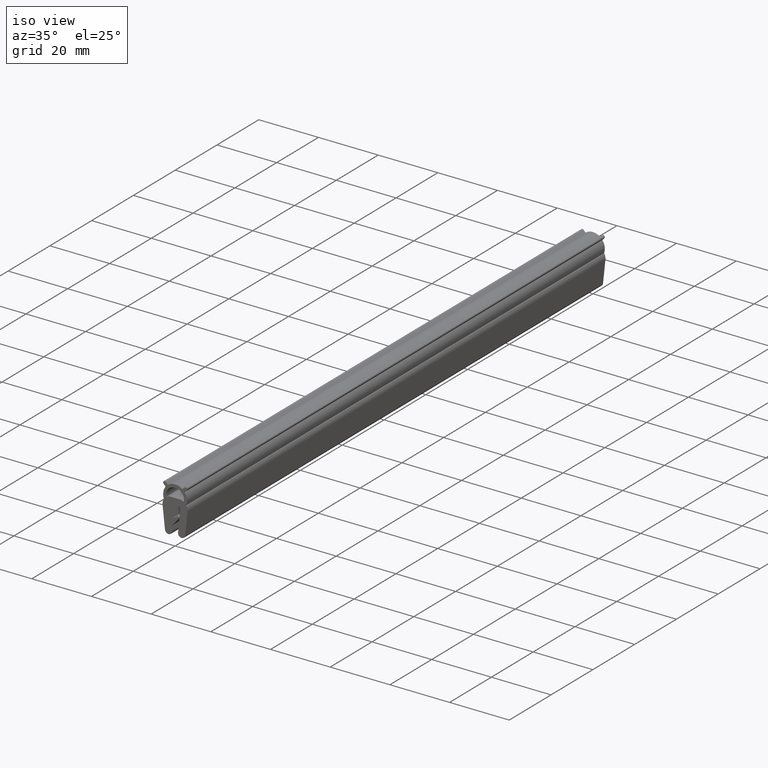
[diagram: clean part render]
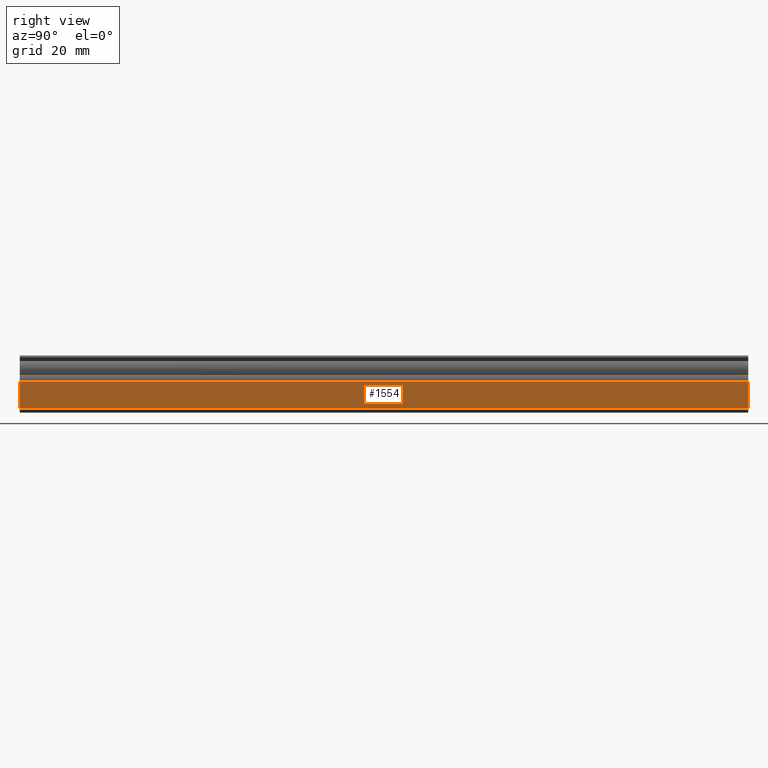
[diagram: tour spotlight — one face highlighted and labeled with its STEP entity id]
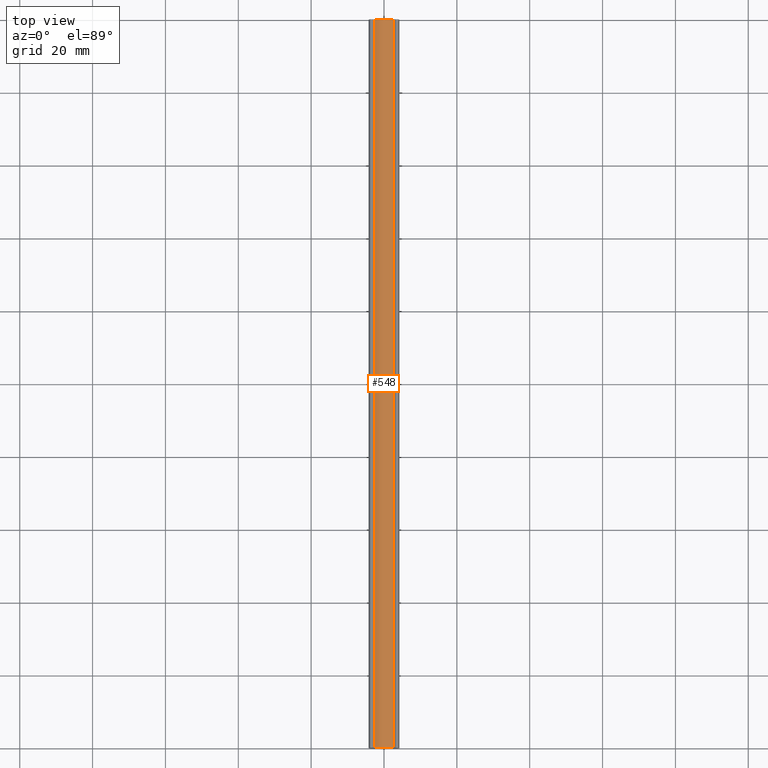
[diagram: tour spotlight — one face highlighted and labeled with its STEP entity id]
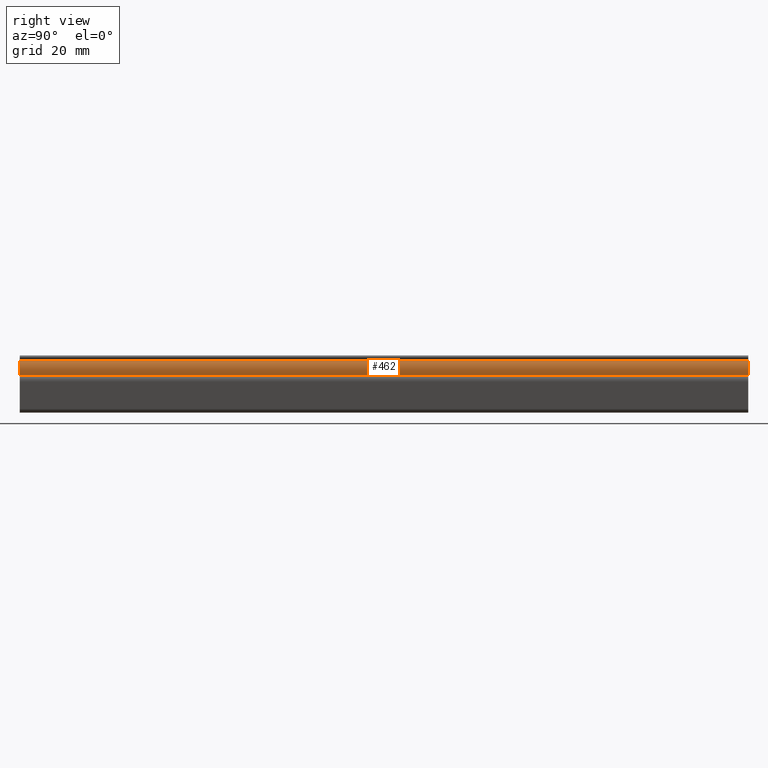
[diagram: tour spotlight — one face highlighted and labeled with its STEP entity id]
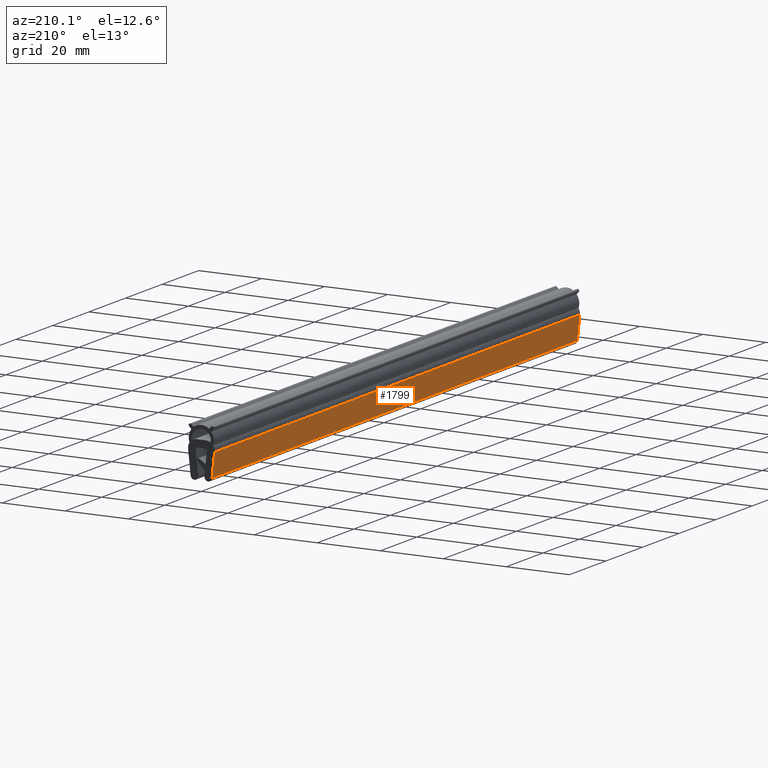
[diagram: tour spotlight — one face highlighted and labeled with its STEP entity id]
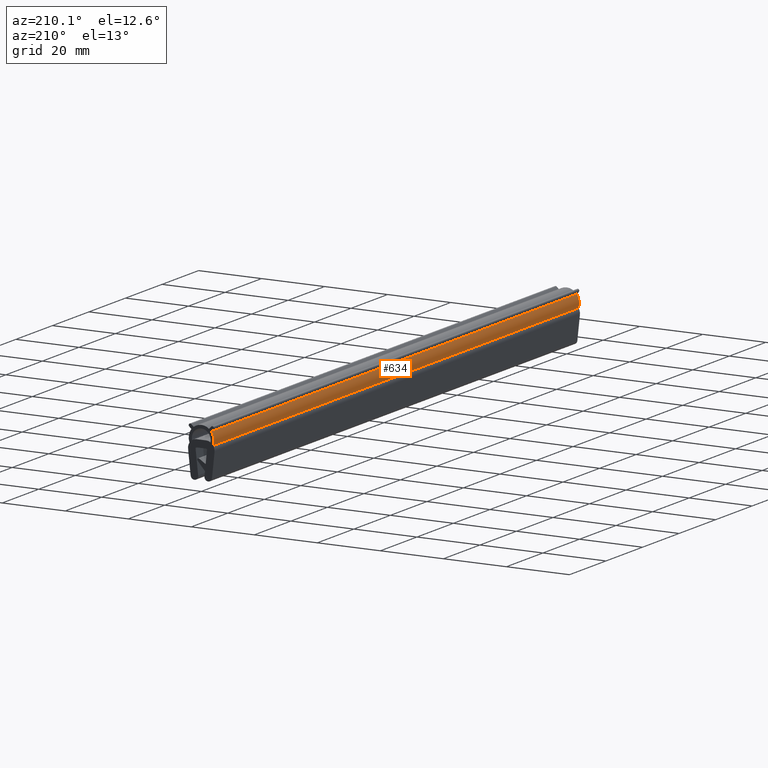
[diagram: tour spotlight — one face highlighted and labeled with its STEP entity id]
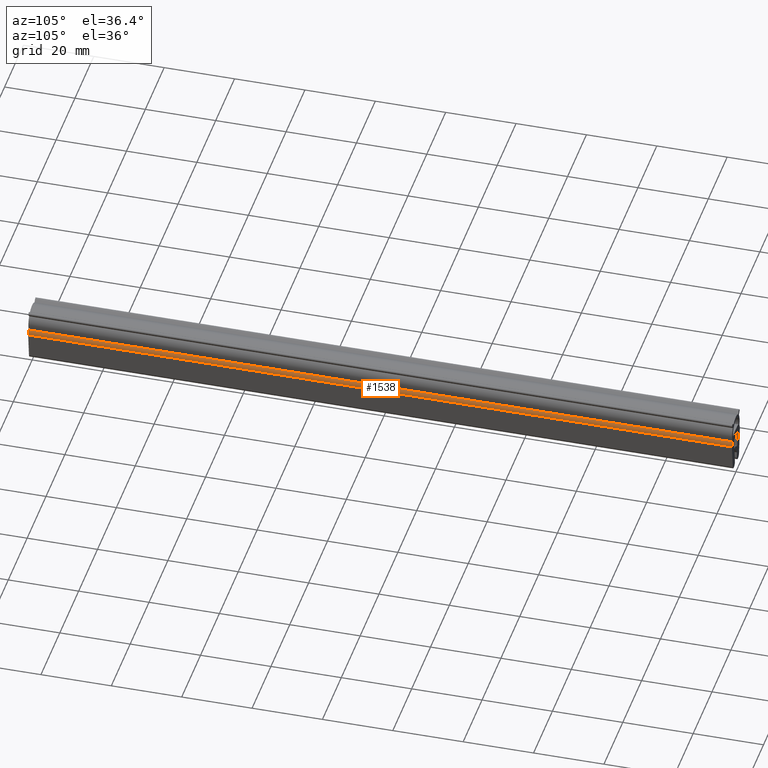
[diagram: tour spotlight — one face highlighted and labeled with its STEP entity id]
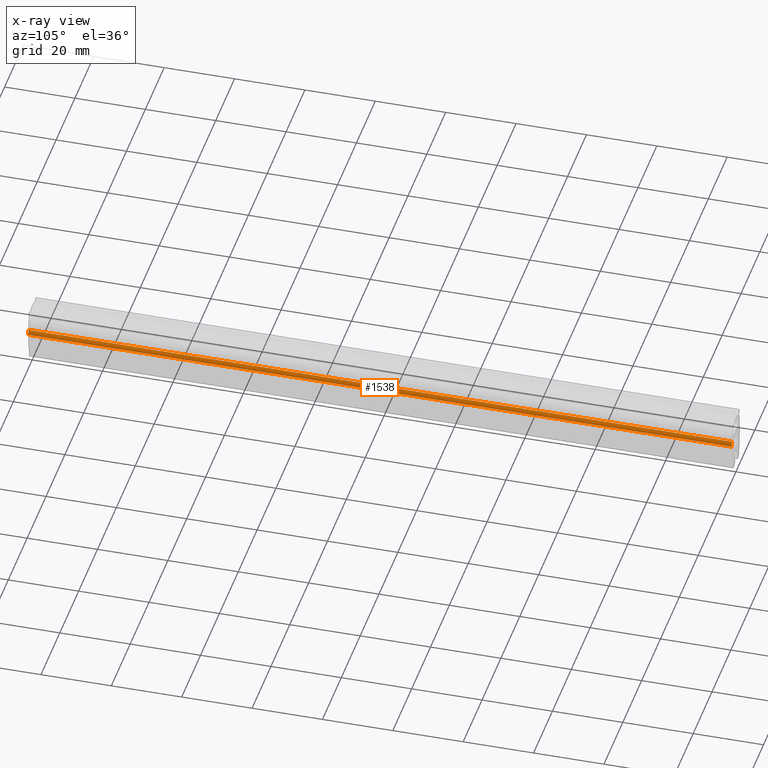
[diagram: x-ray of the same camera — body ghosted, this tour face saturated]
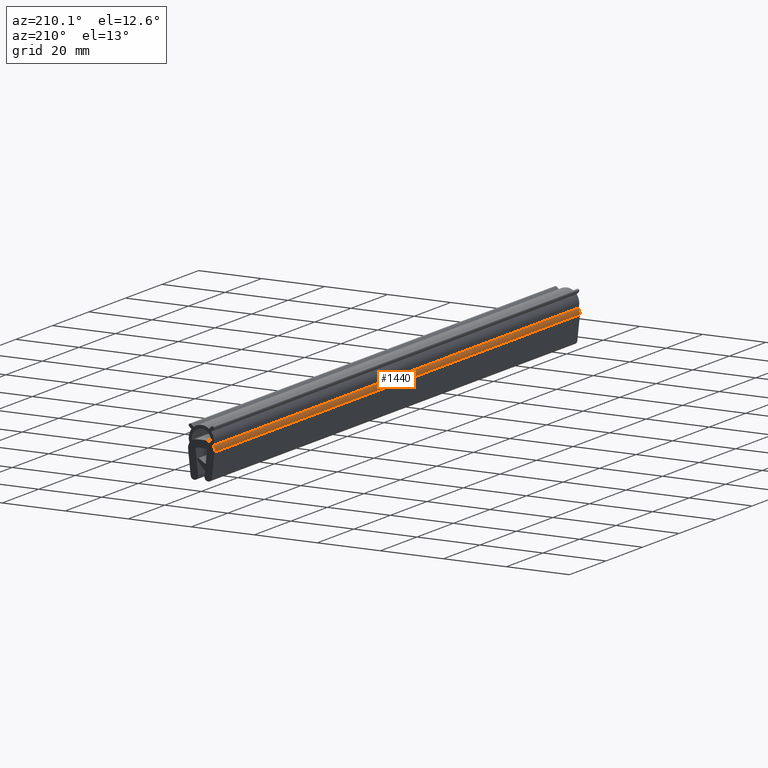
[diagram: tour spotlight — one face highlighted and labeled with its STEP entity id]
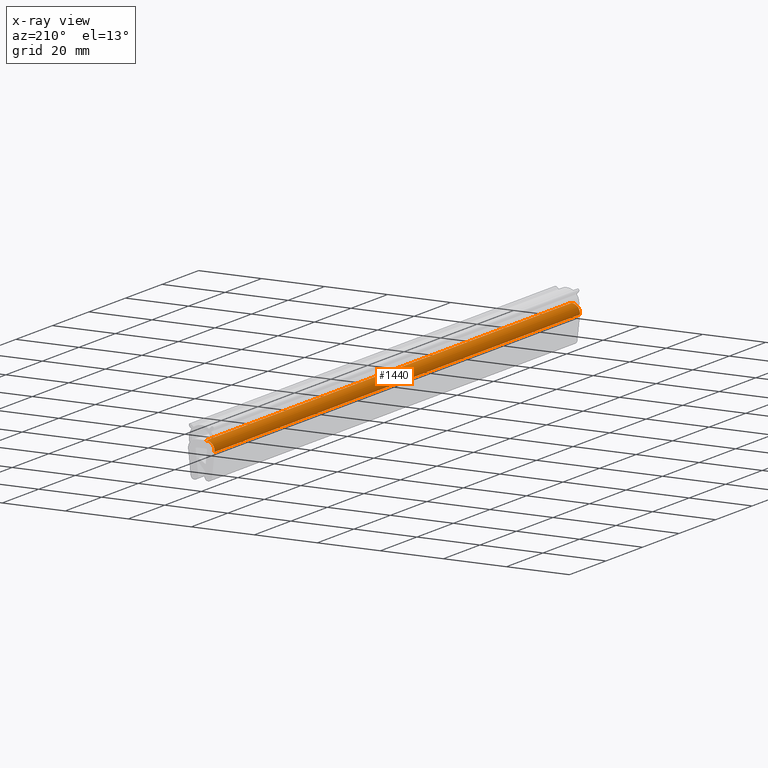
[diagram: x-ray of the same camera — body ghosted, this tour face saturated]
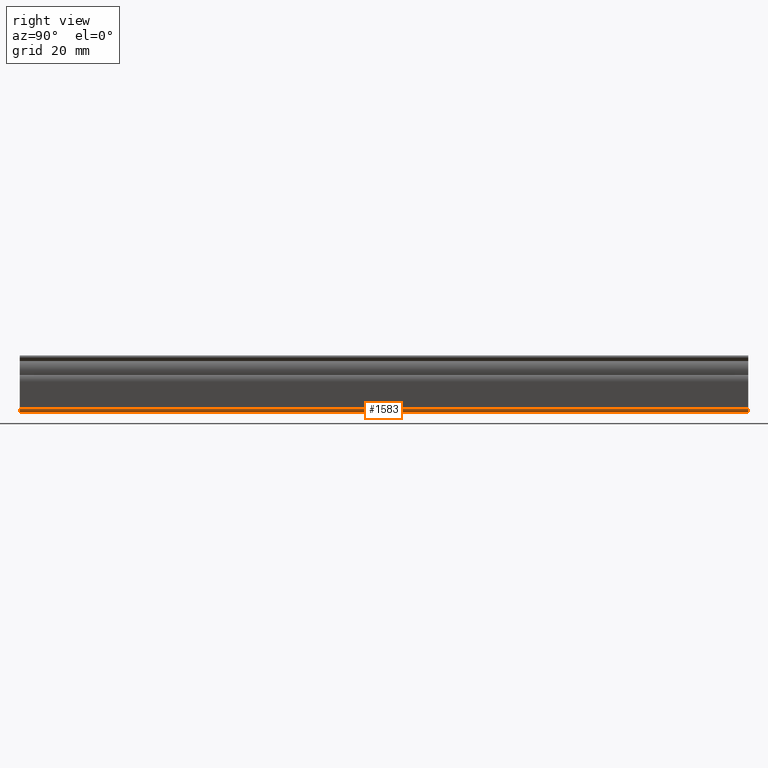
[diagram: tour spotlight — one face highlighted and labeled with its STEP entity id]
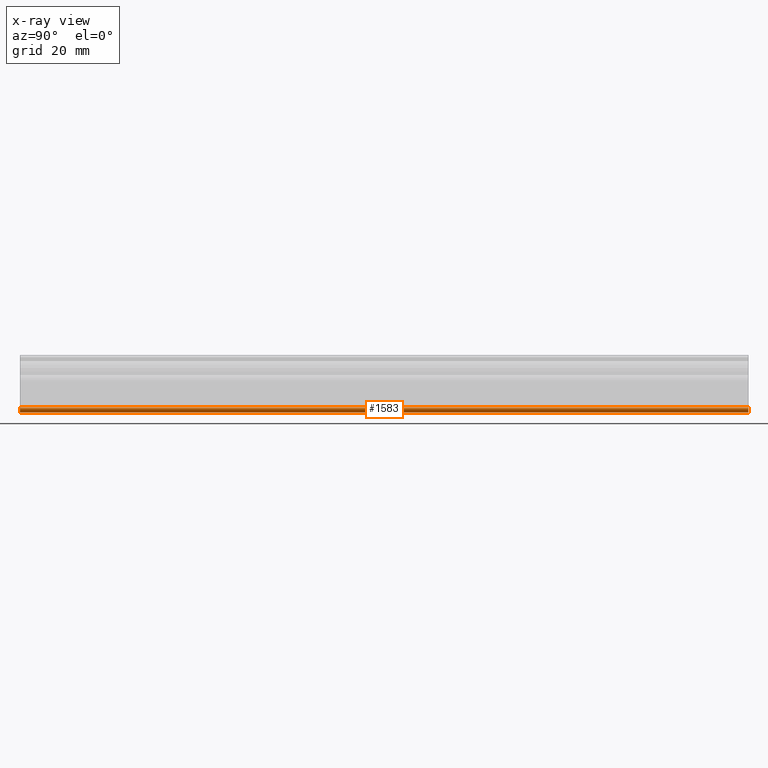
[diagram: x-ray of the same camera — body ghosted, this tour face saturated]
A machine part: a face-by-face anatomy tour. The part has 61 B-rep faces; the first image is the clean iso view, then the 8 largest visible faces are spotlighted one at a time (largest first), each with its STEP entity span.

Face 1 — right view, entity #1554. In plain terms, the highlighted face is a freeform B-spline surface patch.
Definition (entity closure, byte-faithful):
#838=CARTESIAN_POINT('',(3.385742273282435,0.0,-14.630608957689040));
#839=VERTEX_POINT('',#838);
#855=CARTESIAN_POINT('',(4.200000208288410,0.0,-7.193870154800210));
#856=VERTEX_POINT('',#855);
#857=CARTESIAN_POINT('',(3.385742273282435,0.0,-14.630608957689040));
#858=CARTESIAN_POINT('',(4.200000208288410,0.0,-7.193870154800210));
#859=QUASI_UNIFORM_CURVE('',1,(#857,#858),.UNSPECIFIED.,.F.,.U.);
#860=EDGE_CURVE('',#839,#856,#859,.T.);
#1107=CARTESIAN_POINT('',(4.200000208288410,200.0,-7.193870154800210));
#1108=VERTEX_POINT('',#1107);
#1122=CARTESIAN_POINT('',(3.385742273282435,200.0,-14.630608957689040));
#1123=VERTEX_POINT('',#1122);
#1124=CARTESIAN_POINT('',(3.385742273282435,200.0,-14.630608957689040));
#1125=CARTESIAN_POINT('',(4.200000208288410,200.0,-7.193870154800210));
#1126=QUASI_UNIFORM_CURVE('',1,(#1124,#1125),.UNSPECIFIED.,.F.,.U.);
#1127=EDGE_CURVE('',#1123,#1108,#1126,.T.);
#1529=CARTESIAN_POINT('',(4.200000208288410,200.0,-7.193870154800210));
#1530=CARTESIAN_POINT('',(4.200000208288410,0.0,-7.193870154800210));
#1531=QUASI_UNIFORM_CURVE('',1,(#1529,#1530),.UNSPECIFIED.,.F.,.U.);
#1532=EDGE_CURVE('',#1108,#856,#1531,.T.);
#1539=CARTESIAN_POINT('',(4.240672402942014,-9.989999612361194,-6.822404952957445));
#1540=CARTESIAN_POINT('',(3.345070129588935,-9.989999612361194,-15.002073694104411));
#1541=CARTESIAN_POINT('',(4.240672402942014,209.990004976779200,-6.822404952957445));
#1542=CARTESIAN_POINT('',(3.345070129588935,209.990004976779200,-15.002073694104411));
#1543=B_SPLINE_SURFACE_WITH_KNOTS('',1,1,((#1539,#1541),(#1540,#1542)),.UNSPECIFIED.,.F.,.F.,.U.,(2,2),(2,2),(0.0,8.228552980137636),(0.0,219.980004589140410),.UNSPECIFIED.);
#1544=ORIENTED_EDGE('',*,*,#860,.F.);
#1545=CARTESIAN_POINT('',(3.385742273282435,200.0,-14.630608957689040));
#1546=CARTESIAN_POINT('',(3.385742273282435,0.0,-14.630608957689040));
#1547=QUASI_UNIFORM_CURVE('',1,(#1545,#1546),.UNSPECIFIED.,.F.,.U.);
#1548=EDGE_CURVE('',#1123,#839,#1547,.T.);
#1549=ORIENTED_EDGE('',*,*,#1548,.F.);
#1550=ORIENTED_EDGE('',*,*,#1127,.T.);
#1551=ORIENTED_EDGE('',*,*,#1532,.T.);
#1552=EDGE_LOOP('',(#1544,#1549,#1550,#1551));
#1553=FACE_OUTER_BOUND('',#1552,.T.);
#1554=ADVANCED_FACE('',(#1553),#1543,.T.);

Face 2 — top view, entity #548. In plain terms, the highlighted face is a freeform B-spline surface patch.
Definition (entity closure, byte-faithful):
#141=CARTESIAN_POINT('',(2.452689649487175,0.0,-0.840203569326272));
#142=VERTEX_POINT('',#141);
#148=CARTESIAN_POINT('',(-2.452689649487200,0.0,-0.840203569326334));
#149=VERTEX_POINT('',#148);
#150=CARTESIAN_POINT('',(2.452689649487175,0.0,-0.840203569326273));
#151=CARTESIAN_POINT('',(-3.581163E-014,0.0,1.063617340876788));
#152=CARTESIAN_POINT('',(-2.452689649487200,0.0,-0.840203569326334));
#160=(BOUNDED_CURVE()B_SPLINE_CURVE(2,(#150,#151,#152),.UNSPECIFIED.,.F.,.U.)CURVE()GEOMETRIC_REPRESENTATION_ITEM()QUASI_UNIFORM_CURVE()RATIONAL_B_SPLINE_CURVE((1.0,0.789949107668429,1.0))REPRESENTATION_ITEM(''));
#161=EDGE_CURVE('',#142,#149,#160,.T.);
#275=CARTESIAN_POINT('',(-2.452689649487200,200.0,-0.840203569326334));
#276=VERTEX_POINT('',#275);
#282=CARTESIAN_POINT('',(2.452689649487175,200.0,-0.840203569326272));
#283=VERTEX_POINT('',#282);
#284=CARTESIAN_POINT('',(2.452689649487175,200.0,-0.840203569326273));
#285=CARTESIAN_POINT('',(-3.581163E-014,199.999999999999970,1.063617340876788));
#286=CARTESIAN_POINT('',(-2.452689649487228,200.0,-0.840203569326298));
#294=(BOUNDED_CURVE()B_SPLINE_CURVE(2,(#284,#285,#286),.UNSPECIFIED.,.F.,.U.)CURVE()GEOMETRIC_REPRESENTATION_ITEM()QUASI_UNIFORM_CURVE()RATIONAL_B_SPLINE_CURVE((1.0,0.789949107668429,1.0))REPRESENTATION_ITEM(''));
#295=EDGE_CURVE('',#283,#276,#294,.T.);
#516=CARTESIAN_POINT('',(2.452689649487175,200.0,-0.840203569326272));
#517=CARTESIAN_POINT('',(2.452689649487175,0.0,-0.840203569326272));
#518=QUASI_UNIFORM_CURVE('',1,(#516,#517),.UNSPECIFIED.,.F.,.U.);
#519=EDGE_CURVE('',#283,#142,#518,.T.);
#524=CARTESIAN_POINT('',(-2.534563001830791,205.0,-0.905490282815300));
#525=CARTESIAN_POINT('',(-2.534563001830791,-5.125000000000000,-0.905490282815300));
#526=CARTESIAN_POINT('',(0.062038960533400,205.0,1.221260597216488));
#527=CARTESIAN_POINT('',(0.062038960533400,-5.124999999999999,1.221260597216488));
#528=CARTESIAN_POINT('',(2.607374914805158,205.0,-0.966586732137421));
#529=CARTESIAN_POINT('',(2.607374914805158,-5.125000000000000,-0.966586732137421));
#537=(BOUNDED_SURFACE()B_SPLINE_SURFACE(1,2,((#524,#526,#528),(#525,#527,#529)),.UNSPECIFIED.,.F.,.F.,.U.)B_SPLINE_SURFACE_WITH_KNOTS((2,2),(3,3),(0.0,210.125000000000110),(0.0,5.823523748259238),.UNSPECIFIED.)GEOMETRIC_REPRESENTATION_ITEM()RATIONAL_B_SPLINE_SURFACE(((1.0,0.766044443118978,1.0),(1.0,0.766044443118978,1.0)))REPRESENTATION_ITEM('')SURFACE());
#538=ORIENTED_EDGE('',*,*,#161,.F.);
#539=ORIENTED_EDGE('',*,*,#519,.F.);
#540=ORIENTED_EDGE('',*,*,#295,.T.);
#541=CARTESIAN_POINT('',(-2.452689649487200,200.0,-0.840203569326334));
#542=CARTESIAN_POINT('',(-2.452689649487200,0.0,-0.840203569326334));
#543=QUASI_UNIFORM_CURVE('',1,(#541,#542),.UNSPECIFIED.,.F.,.U.);
#544=EDGE_CURVE('',#276,#149,#543,.T.);
#545=ORIENTED_EDGE('',*,*,#544,.T.);
#546=EDGE_LOOP('',(#538,#539,#540,#545));
#547=FACE_OUTER_BOUND('',#546,.T.);
#548=ADVANCED_FACE('',(#547),#537,.T.);

Face 3 — right view, entity #462. In plain terms, the highlighted face is a freeform B-spline surface patch.
Definition (entity closure, byte-faithful):
#85=CARTESIAN_POINT('',(3.751994196858260,0.0,-5.386556723232770));
#86=VERTEX_POINT('',#85);
#100=CARTESIAN_POINT('',(3.159796430673720,0.0,-1.547310350512815));
#101=VERTEX_POINT('',#100);
#102=CARTESIAN_POINT('',(3.751994196858243,0.0,-5.386556723232766));
#103=CARTESIAN_POINT('',(4.522175638558348,0.0,-3.302461459499652));
#104=CARTESIAN_POINT('',(3.159796430673720,0.0,-1.547310350512819));
#112=(BOUNDED_CURVE()B_SPLINE_CURVE(2,(#102,#103,#104),.UNSPECIFIED.,.F.,.U.)CURVE()GEOMETRIC_REPRESENTATION_ITEM()QUASI_UNIFORM_CURVE()RATIONAL_B_SPLINE_CURVE((1.0,0.874191493389059,1.0))REPRESENTATION_ITEM(''));
#113=EDGE_CURVE('',#86,#101,#112,.T.);
#323=CARTESIAN_POINT('',(3.159796430673720,200.0,-1.547310350512815));
#324=VERTEX_POINT('',#323);
#330=CARTESIAN_POINT('',(3.751994196858260,200.0,-5.386556723232770));
#331=VERTEX_POINT('',#330);
#332=CARTESIAN_POINT('',(3.751994196858243,200.0,-5.386556723232766));
#333=CARTESIAN_POINT('',(4.522175638558348,200.0,-3.302461459499652));
#334=CARTESIAN_POINT('',(3.159796430673720,200.0,-1.547310350512819));
#342=(BOUNDED_CURVE()B_SPLINE_CURVE(2,(#332,#333,#334),.UNSPECIFIED.,.F.,.U.)CURVE()GEOMETRIC_REPRESENTATION_ITEM()QUASI_UNIFORM_CURVE()RATIONAL_B_SPLINE_CURVE((1.0,0.874191493389059,1.0))REPRESENTATION_ITEM(''));
#343=EDGE_CURVE('',#331,#324,#342,.T.);
#430=CARTESIAN_POINT('',(3.751994196858260,200.0,-5.386556723232770));
#431=CARTESIAN_POINT('',(3.751994196858260,0.0,-5.386556723232770));
#432=QUASI_UNIFORM_CURVE('',1,(#430,#431),.UNSPECIFIED.,.F.,.U.);
#433=EDGE_CURVE('',#331,#86,#432,.T.);
#438=CARTESIAN_POINT('',(3.094509717184717,205.0,-1.465436998169253));
#439=CARTESIAN_POINT('',(3.094509717184717,-5.125000000000000,-1.465436998169253));
#440=CARTESIAN_POINT('',(4.628740895665282,204.999999999999970,-3.338617221658105));
#441=CARTESIAN_POINT('',(4.628740895665282,-5.125000000000000,-3.338617221658105));
#442=CARTESIAN_POINT('',(3.680495912441321,204.999999999999970,-5.566508805753299));
#443=CARTESIAN_POINT('',(3.680495912441321,-5.125000000000000,-5.566508805753299));
#451=(BOUNDED_SURFACE()B_SPLINE_SURFACE(1,2,((#438,#440,#442),(#439,#441,#443)),.UNSPECIFIED.,.F.,.F.,.U.)B_SPLINE_SURFACE_WITH_KNOTS((2,2),(3,3),(0.0,210.125000000000000),(0.0,4.465398468239037),.UNSPECIFIED.)GEOMETRIC_REPRESENTATION_ITEM()RATIONAL_B_SPLINE_SURFACE(((1.0,0.854175971962481,0.996960397644796),(1.0,0.854175971962481,0.996960397644796)))REPRESENTATION_ITEM('')SURFACE());
#452=ORIENTED_EDGE('',*,*,#113,.F.);
#453=ORIENTED_EDGE('',*,*,#433,.F.);
#454=ORIENTED_EDGE('',*,*,#343,.T.);
#455=CARTESIAN_POINT('',(3.159796430673720,200.0,-1.547310350512815));
#456=CARTESIAN_POINT('',(3.159796430673720,0.0,-1.547310350512815));
#457=QUASI_UNIFORM_CURVE('',1,(#455,#456),.UNSPECIFIED.,.F.,.U.);
#458=EDGE_CURVE('',#324,#101,#457,.T.);
#459=ORIENTED_EDGE('',*,*,#458,.T.);
#460=EDGE_LOOP('',(#452,#453,#454,#459));
#461=FACE_OUTER_BOUND('',#460,.T.);
#462=ADVANCED_FACE('',(#461),#451,.T.);

Face 4 — auxiliary view, entity #1799. In plain terms, the highlighted face is a freeform B-spline surface patch.
Definition (entity closure, byte-faithful):
#704=CARTESIAN_POINT('',(-4.199999791712240,0.0,-7.193870154800090));
#705=VERTEX_POINT('',#704);
#721=CARTESIAN_POINT('',(-3.385741856706540,0.0,-14.630608957688979));
#722=VERTEX_POINT('',#721);
#723=CARTESIAN_POINT('',(-4.199999791712240,0.0,-7.193870154800090));
#724=CARTESIAN_POINT('',(-3.385741856706540,0.0,-14.630608957688979));
#725=QUASI_UNIFORM_CURVE('',1,(#723,#724),.UNSPECIFIED.,.F.,.U.);
#726=EDGE_CURVE('',#705,#722,#725,.T.);
#1045=CARTESIAN_POINT('',(-4.199999791712240,200.0,-7.193870154800090));
#1046=VERTEX_POINT('',#1045);
#1047=CARTESIAN_POINT('',(-3.385741856706540,200.0,-14.630608957688979));
#1048=VERTEX_POINT('',#1047);
#1049=CARTESIAN_POINT('',(-4.199999791712240,200.0,-7.193870154800090));
#1050=CARTESIAN_POINT('',(-3.385741856706540,200.0,-14.630608957688979));
#1051=QUASI_UNIFORM_CURVE('',1,(#1049,#1050),.UNSPECIFIED.,.F.,.U.);
#1052=EDGE_CURVE('',#1046,#1048,#1051,.T.);
#1433=CARTESIAN_POINT('',(-4.199999791712240,200.0,-7.193870154800090));
#1434=CARTESIAN_POINT('',(-4.199999791712240,0.0,-7.193870154800090));
#1435=QUASI_UNIFORM_CURVE('',1,(#1433,#1434),.UNSPECIFIED.,.F.,.U.);
#1436=EDGE_CURVE('',#1046,#705,#1435,.T.);
#1778=CARTESIAN_POINT('',(-3.385741856706540,200.0,-14.630608957688979));
#1779=CARTESIAN_POINT('',(-3.385741856706540,0.0,-14.630608957688979));
#1780=QUASI_UNIFORM_CURVE('',1,(#1778,#1779),.UNSPECIFIED.,.F.,.U.);
#1781=EDGE_CURVE('',#1048,#722,#1780,.T.);
#1788=CARTESIAN_POINT('',(-3.345069720293220,-9.989999612361194,-15.002073627614740));
#1789=CARTESIAN_POINT('',(-4.240671993645858,-9.989999612361194,-6.822404886467694));
#1790=CARTESIAN_POINT('',(-3.345069720293220,209.990004976779200,-15.002073627614740));
#1791=CARTESIAN_POINT('',(-4.240671993645858,209.990004976779200,-6.822404886467694));
#1792=B_SPLINE_SURFACE_WITH_KNOTS('',1,1,((#1788,#1790),(#1789,#1791)),.UNSPECIFIED.,.F.,.F.,.U.,(2,2),(2,2),(0.0,8.228552980137668),(0.0,219.980004589140410),.UNSPECIFIED.);
#1793=ORIENTED_EDGE('',*,*,#726,.F.);
#1794=ORIENTED_EDGE('',*,*,#1436,.F.);
#1795=ORIENTED_EDGE('',*,*,#1052,.T.);
#1796=ORIENTED_EDGE('',*,*,#1781,.T.);
#1797=EDGE_LOOP('',(#1793,#1794,#1795,#1796));
#1798=FACE_OUTER_BOUND('',#1797,.T.);
#1799=ADVANCED_FACE('',(#1798),#1792,.T.);

Face 5 — auxiliary view, entity #634. In plain terms, the highlighted face is a freeform B-spline surface patch.
Definition (entity closure, byte-faithful):
#51=CARTESIAN_POINT('',(-3.751994049740820,0.0,-5.386557121329560));
#52=VERTEX_POINT('',#51);
#189=CARTESIAN_POINT('',(-3.159796430673750,0.0,-1.547310350512825));
#190=VERTEX_POINT('',#189);
#196=CARTESIAN_POINT('',(-3.159796430673747,0.0,-1.547310350512826));
#197=CARTESIAN_POINT('',(-4.522175808823604,0.0,-3.302461678852108));
#198=CARTESIAN_POINT('',(-3.751994049740803,0.0,-5.386557121329552));
#206=(BOUNDED_CURVE()B_SPLINE_CURVE(2,(#196,#197,#198),.UNSPECIFIED.,.F.,.U.)CURVE()GEOMETRIC_REPRESENTATION_ITEM()QUASI_UNIFORM_CURVE()RATIONAL_B_SPLINE_CURVE((1.0,0.874191467628308,1.0))REPRESENTATION_ITEM(''));
#207=EDGE_CURVE('',#190,#52,#206,.T.);
#219=CARTESIAN_POINT('',(-3.751994049740820,200.0,-5.386557121329560));
#220=VERTEX_POINT('',#219);
#234=CARTESIAN_POINT('',(-3.159796430673750,200.0,-1.547310350512825));
#235=VERTEX_POINT('',#234);
#236=CARTESIAN_POINT('',(-3.159796430673747,200.0,-1.547310350512826));
#237=CARTESIAN_POINT('',(-4.522175808823604,200.0,-3.302461678852108));
#238=CARTESIAN_POINT('',(-3.751994049740803,200.0,-5.386557121329552));
#246=(BOUNDED_CURVE()B_SPLINE_CURVE(2,(#236,#237,#238),.UNSPECIFIED.,.F.,.U.)CURVE()GEOMETRIC_REPRESENTATION_ITEM()QUASI_UNIFORM_CURVE()RATIONAL_B_SPLINE_CURVE((1.0,0.874191467628308,1.0))REPRESENTATION_ITEM(''));
#247=EDGE_CURVE('',#235,#220,#246,.T.);
#602=CARTESIAN_POINT('',(-3.159796430673750,200.0,-1.547310350512825));
#603=CARTESIAN_POINT('',(-3.159796430673750,0.0,-1.547310350512825));
#604=QUASI_UNIFORM_CURVE('',1,(#602,#603),.UNSPECIFIED.,.F.,.U.);
#605=EDGE_CURVE('',#235,#190,#604,.T.);
#610=CARTESIAN_POINT('',(-3.739751345364335,205.0,-5.419246234747769));
#611=CARTESIAN_POINT('',(-3.739751345364335,-5.125000000000000,-5.419246234747769));
#612=CARTESIAN_POINT('',(-4.582129712844849,204.999999999999970,-3.199556968740357));
#613=CARTESIAN_POINT('',(-4.582129712844849,-5.125000000000000,-3.199556968740357));
#614=CARTESIAN_POINT('',(-3.037099148867969,205.0,-1.396919371216956));
#615=CARTESIAN_POINT('',(-3.037099148867969,-5.124999999999999,-1.396919371216956));
#623=(BOUNDED_SURFACE()B_SPLINE_SURFACE(1,2,((#610,#612,#614),(#611,#613,#615)),.UNSPECIFIED.,.F.,.F.,.U.)B_SPLINE_SURFACE_WITH_KNOTS((2,2),(3,3),(0.0,210.125000000000000),(0.0,4.390731154622709),.UNSPECIFIED.)GEOMETRIC_REPRESENTATION_ITEM()RATIONAL_B_SPLINE_SURFACE(((1.0,0.858661702512199,0.997042467045171),(1.0,0.858661702512199,0.997042467045171)))REPRESENTATION_ITEM('')SURFACE());
#624=ORIENTED_EDGE('',*,*,#207,.F.);
#625=ORIENTED_EDGE('',*,*,#605,.F.);
#626=ORIENTED_EDGE('',*,*,#247,.T.);
#627=CARTESIAN_POINT('',(-3.751994049740820,200.0,-5.386557121329560));
#628=CARTESIAN_POINT('',(-3.751994049740820,0.0,-5.386557121329560));
#629=QUASI_UNIFORM_CURVE('',1,(#627,#628),.UNSPECIFIED.,.F.,.U.);
#630=EDGE_CURVE('',#220,#52,#629,.T.);
#631=ORIENTED_EDGE('',*,*,#630,.T.);
#632=EDGE_LOOP('',(#624,#625,#626,#631));
#633=FACE_OUTER_BOUND('',#632,.T.);
#634=ADVANCED_FACE('',(#633),#623,.T.);

Face 6 — auxiliary view, entity #1538. An x-ray twin of the same camera follows (body ghosted, this face saturated) — the face is partly hidden behind the body. In plain terms, the highlighted face is a freeform B-spline surface patch.
Definition (entity closure, byte-faithful):
#855=CARTESIAN_POINT('',(4.200000208288410,0.0,-7.193870154800210));
#856=VERTEX_POINT('',#855);
#862=CARTESIAN_POINT('',(3.928069784495670,0.0,-5.686692876149960));
#863=VERTEX_POINT('',#862);
#864=CARTESIAN_POINT('',(4.200000208288410,0.0,-7.193870154800210));
#865=CARTESIAN_POINT('',(4.286914524793929,0.0,-6.400068777749016));
#866=CARTESIAN_POINT('',(3.928069784495669,0.0,-5.686692876149960));
#874=(BOUNDED_CURVE()B_SPLINE_CURVE(2,(#864,#865,#866),.UNSPECIFIED.,.F.,.U.)CURVE()GEOMETRIC_REPRESENTATION_ITEM()QUASI_UNIFORM_CURVE()RATIONAL_B_SPLINE_CURVE((1.0,0.958938715486847,1.0))REPRESENTATION_ITEM(''));
#875=EDGE_CURVE('',#856,#863,#874,.T.);
#1100=CARTESIAN_POINT('',(3.928069784495670,200.0,-5.686692876149960));
#1101=VERTEX_POINT('',#1100);
#1107=CARTESIAN_POINT('',(4.200000208288410,200.0,-7.193870154800210));
#1108=VERTEX_POINT('',#1107);
#1109=CARTESIAN_POINT('',(4.200000208288460,200.0,-7.193870154800216));
#1110=CARTESIAN_POINT('',(4.286914524793929,200.0,-6.400068777749016));
#1111=CARTESIAN_POINT('',(3.928069784495669,200.0,-5.686692876149960));
#1119=(BOUNDED_CURVE()B_SPLINE_CURVE(2,(#1109,#1110,#1111),.UNSPECIFIED.,.F.,.U.)CURVE()GEOMETRIC_REPRESENTATION_ITEM()QUASI_UNIFORM_CURVE()RATIONAL_B_SPLINE_CURVE((1.0,0.958938715486847,1.0))REPRESENTATION_ITEM(''));
#1120=EDGE_CURVE('',#1108,#1101,#1119,.T.);
#1504=CARTESIAN_POINT('',(3.928069784495670,200.0,-5.686692876149960));
#1505=CARTESIAN_POINT('',(3.928069784495670,0.0,-5.686692876149960));
#1506=QUASI_UNIFORM_CURVE('',1,(#1504,#1505),.UNSPECIFIED.,.F.,.U.);
#1507=EDGE_CURVE('',#1101,#863,#1506,.T.);
#1514=CARTESIAN_POINT('',(3.894411853135896,205.0,-5.621974507154728));
#1515=CARTESIAN_POINT('',(3.894411853135896,-5.125000000000000,-5.621974507154728));
#1516=CARTESIAN_POINT('',(4.311225015698057,205.0,-6.397652722386417));
#1517=CARTESIAN_POINT('',(4.311225015698057,-5.125000000000000,-6.397652722386417));
#1518=CARTESIAN_POINT('',(4.190579108715493,204.999999999999970,-7.269922446266849));
#1519=CARTESIAN_POINT('',(4.190579108715493,-5.125000000000000,-7.269922446266849));
#1527=(BOUNDED_SURFACE()B_SPLINE_SURFACE(1,2,((#1514,#1516,#1518),(#1515,#1517,#1519)),.UNSPECIFIED.,.F.,.F.,.U.)B_SPLINE_SURFACE_WITH_KNOTS((2,2),(3,3),(0.0,210.125000000000000),(0.0,0.925179380076379),.UNSPECIFIED.)GEOMETRIC_REPRESENTATION_ITEM()RATIONAL_B_SPLINE_SURFACE(((1.0,0.946933090286556,0.992059001835619),(1.0,0.946933090286556,0.992059001835619)))REPRESENTATION_ITEM('')SURFACE());
#1528=ORIENTED_EDGE('',*,*,#875,.F.);
#1529=CARTESIAN_POINT('',(4.200000208288410,200.0,-7.193870154800210));
#1530=CARTESIAN_POINT('',(4.200000208288410,0.0,-7.193870154800210));
#1531=QUASI_UNIFORM_CURVE('',1,(#1529,#1530),.UNSPECIFIED.,.F.,.U.);
#1532=EDGE_CURVE('',#1108,#856,#1531,.T.);
#1533=ORIENTED_EDGE('',*,*,#1532,.F.);
#1534=ORIENTED_EDGE('',*,*,#1120,.T.);
#1535=ORIENTED_EDGE('',*,*,#1507,.T.);
#1536=EDGE_LOOP('',(#1528,#1533,#1534,#1535));
#1537=FACE_OUTER_BOUND('',#1536,.T.);
#1538=ADVANCED_FACE('',(#1537),#1527,.T.);

Face 7 — auxiliary view, entity #1440. An x-ray twin of the same camera follows (body ghosted, this face saturated) — the face is partly hidden behind the body. In plain terms, the highlighted face is a freeform B-spline surface patch.
Definition (entity closure, byte-faithful):
#702=CARTESIAN_POINT('',(-1.516039968593050,0.0,-4.200000000000140));
#703=VERTEX_POINT('',#702);
#704=CARTESIAN_POINT('',(-4.199999791712240,0.0,-7.193870154800090));
#705=VERTEX_POINT('',#704);
#706=CARTESIAN_POINT('',(-1.516039968593050,0.0,-4.200000000000140));
#707=CARTESIAN_POINT('',(-2.721666971928058,0.0,-4.200000000000109));
#708=CARTESIAN_POINT('',(-3.526444084431447,0.0,-5.097702773952189));
#709=CARTESIAN_POINT('',(-4.331221196934837,0.0,-5.995405547904268));
#710=CARTESIAN_POINT('',(-4.199999791712240,0.0,-7.193870154800090));
#718=(BOUNDED_CURVE()B_SPLINE_CURVE(2,(#706,#707,#708,#709,#710),.UNSPECIFIED.,.F.,.U.)B_SPLINE_CURVE_WITH_KNOTS((3,2,3),(0.0,0.500000000000000,1.0),.UNSPECIFIED.)CURVE()GEOMETRIC_REPRESENTATION_ITEM()RATIONAL_B_SPLINE_CURVE((1.0,0.913103907320755,1.0,0.913103907320755,1.0))REPRESENTATION_ITEM(''));
#719=EDGE_CURVE('',#703,#705,#718,.T.);
#1045=CARTESIAN_POINT('',(-4.199999791712240,200.0,-7.193870154800090));
#1046=VERTEX_POINT('',#1045);
#1054=CARTESIAN_POINT('',(-1.516039968593050,200.0,-4.200000000000140));
#1055=VERTEX_POINT('',#1054);
#1056=CARTESIAN_POINT('',(-1.516039968593050,200.0,-4.200000000000110));
#1057=CARTESIAN_POINT('',(-2.721666971928058,200.000000000000030,-4.200000000000109));
#1058=CARTESIAN_POINT('',(-3.526444084431447,200.0,-5.097702773952189));
#1059=CARTESIAN_POINT('',(-4.331221196934837,200.000000000000030,-5.995405547904268));
#1060=CARTESIAN_POINT('',(-4.199999791712211,200.0,-7.193870154800087));
#1068=(BOUNDED_CURVE()B_SPLINE_CURVE(2,(#1056,#1057,#1058,#1059,#1060),.UNSPECIFIED.,.F.,.U.)B_SPLINE_CURVE_WITH_KNOTS((3,2,3),(0.0,0.500000000000000,1.0),.UNSPECIFIED.)CURVE()GEOMETRIC_REPRESENTATION_ITEM()RATIONAL_B_SPLINE_CURVE((1.0,0.913103907320755,1.0,0.913103907320755,1.0))REPRESENTATION_ITEM(''));
#1069=EDGE_CURVE('',#1055,#1046,#1068,.T.);
#1412=CARTESIAN_POINT('',(-4.191387441862794,205.0,-7.264027330387810));
#1413=CARTESIAN_POINT('',(-4.191387441862794,-5.125000000000000,-7.264027330387810));
#1414=CARTESIAN_POINT('',(-4.632987905764063,205.000000000000060,-4.018571325656685));
#1415=CARTESIAN_POINT('',(-4.632987905764063,-5.125000000000000,-4.018571325656685));
#1416=CARTESIAN_POINT('',(-1.362898727961723,205.0,-4.204346505869625));
#1417=CARTESIAN_POINT('',(-1.362898727961723,-5.125000000000000,-4.204346505869625));
#1425=(BOUNDED_SURFACE()B_SPLINE_SURFACE(1,2,((#1412,#1414,#1416),(#1413,#1415,#1417)),.UNSPECIFIED.,.F.,.F.,.U.)B_SPLINE_SURFACE_WITH_KNOTS((2,2),(3,3),(0.0,210.125000000000000),(0.0,5.093610682729187),.UNSPECIFIED.)GEOMETRIC_REPRESENTATION_ITEM()RATIONAL_B_SPLINE_SURFACE(((1.0,0.636078220277764,1.0),(1.0,0.636078220277764,1.0)))REPRESENTATION_ITEM('')SURFACE());
#1426=ORIENTED_EDGE('',*,*,#719,.F.);
#1427=CARTESIAN_POINT('',(-1.516039968593050,200.0,-4.200000000000140));
#1428=CARTESIAN_POINT('',(-1.516039968593050,0.0,-4.200000000000140));
#1429=QUASI_UNIFORM_CURVE('',1,(#1427,#1428),.UNSPECIFIED.,.F.,.U.);
#1430=EDGE_CURVE('',#1055,#703,#1429,.T.);
#1431=ORIENTED_EDGE('',*,*,#1430,.F.);
#1432=ORIENTED_EDGE('',*,*,#1069,.T.);
#1433=CARTESIAN_POINT('',(-4.199999791712240,200.0,-7.193870154800090));
#1434=CARTESIAN_POINT('',(-4.199999791712240,0.0,-7.193870154800090));
#1435=QUASI_UNIFORM_CURVE('',1,(#1433,#1434),.UNSPECIFIED.,.F.,.U.);
#1436=EDGE_CURVE('',#1046,#705,#1435,.T.);
#1437=ORIENTED_EDGE('',*,*,#1436,.T.);
#1438=EDGE_LOOP('',(#1426,#1431,#1432,#1437));
#1439=FACE_OUTER_BOUND('',#1438,.T.);
#1440=ADVANCED_FACE('',(#1439),#1425,.T.);

Face 8 — right view, entity #1583. An x-ray twin of the same camera follows (body ghosted, this face saturated) — the face is partly hidden behind the body. In plain terms, the highlighted face is a freeform B-spline surface patch.
Definition (entity closure, byte-faithful):
#831=CARTESIAN_POINT('',(0.999813938191629,0.0,-14.371103635703060));
#832=VERTEX_POINT('',#831);
#838=CARTESIAN_POINT('',(3.385742273282435,0.0,-14.630608957689040));
#839=VERTEX_POINT('',#838);
#840=CARTESIAN_POINT('',(0.999813938191632,0.0,-14.371103635703060));
#841=CARTESIAN_POINT('',(0.871010061096963,0.0,-15.563304882093293));
#842=CARTESIAN_POINT('',(2.063118546366291,0.0,-15.692964474865709));
#843=CARTESIAN_POINT('',(3.255227031635620,0.0,-15.822624067638129));
#844=CARTESIAN_POINT('',(3.385742273282432,0.0,-14.630608957689040));
#852=(BOUNDED_CURVE()B_SPLINE_CURVE(2,(#840,#841,#842,#843,#844),.UNSPECIFIED.,.F.,.U.)B_SPLINE_CURVE_WITH_KNOTS((3,2,3),(0.0,0.500000000000000,1.0),.UNSPECIFIED.)CURVE()GEOMETRIC_REPRESENTATION_ITEM()RATIONAL_B_SPLINE_CURVE((1.0,0.707360512373877,1.0,0.707360512373877,1.0))REPRESENTATION_ITEM(''));
#853=EDGE_CURVE('',#832,#839,#852,.T.);
#1122=CARTESIAN_POINT('',(3.385742273282435,200.0,-14.630608957689040));
#1123=VERTEX_POINT('',#1122);
#1129=CARTESIAN_POINT('',(0.999813938191629,200.0,-14.371103635703060));
#1130=VERTEX_POINT('',#1129);
#1131=CARTESIAN_POINT('',(0.999813938191632,200.0,-14.371103635703060));
#1132=CARTESIAN_POINT('',(0.871010061096963,199.999999999999940,-15.563304882093293));
#1133=CARTESIAN_POINT('',(2.063118546366291,200.0,-15.692964474865709));
#1134=CARTESIAN_POINT('',(3.255227031635620,199.999999999999940,-15.822624067638129));
#1135=CARTESIAN_POINT('',(3.385742273282432,200.0,-14.630608957689040));
#1143=(BOUNDED_CURVE()B_SPLINE_CURVE(2,(#1131,#1132,#1133,#1134,#1135),.UNSPECIFIED.,.F.,.U.)B_SPLINE_CURVE_WITH_KNOTS((3,2,3),(0.0,0.500000000000000,1.0),.UNSPECIFIED.)CURVE()GEOMETRIC_REPRESENTATION_ITEM()RATIONAL_B_SPLINE_CURVE((1.0,0.707360512373877,1.0,0.707360512373877,1.0))REPRESENTATION_ITEM(''));
#1144=EDGE_CURVE('',#1130,#1123,#1143,.T.);
#1545=CARTESIAN_POINT('',(3.385742273282435,200.0,-14.630608957689040));
#1546=CARTESIAN_POINT('',(3.385742273282435,0.0,-14.630608957689040));
#1547=QUASI_UNIFORM_CURVE('',1,(#1545,#1546),.UNSPECIFIED.,.F.,.U.);
#1548=EDGE_CURVE('',#1123,#839,#1547,.T.);
#1555=CARTESIAN_POINT('',(3.388893825903197,205.0,-14.597621595394081));
#1556=CARTESIAN_POINT('',(3.388893825903197,-5.125000000000000,-14.597621595394081));
#1557=CARTESIAN_POINT('',(3.286022128878827,205.000000000000030,-15.857966424978859));
#1558=CARTESIAN_POINT('',(3.286022128878827,-5.124999999999999,-15.857966424978859));
#1559=CARTESIAN_POINT('',(2.032788446714351,205.0,-15.689274358187820));
#1560=CARTESIAN_POINT('',(2.032788446714351,-5.125000000000000,-15.689274358187820));
#1561=CARTESIAN_POINT('',(0.779554764549879,205.000000000000030,-15.520582291396790));
#1562=CARTESIAN_POINT('',(0.779554764549879,-5.124999999999999,-15.520582291396790));
#1563=CARTESIAN_POINT('',(1.013604827878137,205.0,-14.277894783064230));
#1564=CARTESIAN_POINT('',(1.013604827878137,-5.125000000000000,-14.277894783064230));
#1572=(BOUNDED_SURFACE()B_SPLINE_SURFACE(1,2,((#1555,#1557,#1559,#1561,#1563),(#1556,#1558,#1560,#1562,#1564)),.UNSPECIFIED.,.F.,.F.,.U.)B_SPLINE_SURFACE_WITH_KNOTS((2,2),(3,2,3),(0.0,210.125000000000110),(0.0,2.062242748640975,4.124485497281949),.UNSPECIFIED.)GEOMETRIC_REPRESENTATION_ITEM()RATIONAL_B_SPLINE_SURFACE(((1.0,0.688354575693754,1.0,0.688354575693754,1.0),(1.0,0.688354575693754,1.0,0.688354575693754,1.0)))REPRESENTATION_ITEM('')SURFACE());
#1573=ORIENTED_EDGE('',*,*,#853,.F.);
#1574=CARTESIAN_POINT('',(0.999813938191629,200.0,-14.371103635703060));
#1575=CARTESIAN_POINT('',(0.999813938191629,0.0,-14.371103635703060));
#1576=QUASI_UNIFORM_CURVE('',1,(#1574,#1575),.UNSPECIFIED.,.F.,.U.);
#1577=EDGE_CURVE('',#1130,#832,#1576,.T.);
#1578=ORIENTED_EDGE('',*,*,#1577,.F.);
#1579=ORIENTED_EDGE('',*,*,#1144,.T.);
#1580=ORIENTED_EDGE('',*,*,#1548,.T.);
#1581=EDGE_LOOP('',(#1573,#1578,#1579,#1580));
#1582=FACE_OUTER_BOUND('',#1581,.T.);
#1583=ADVANCED_FACE('',(#1582),#1572,.T.);